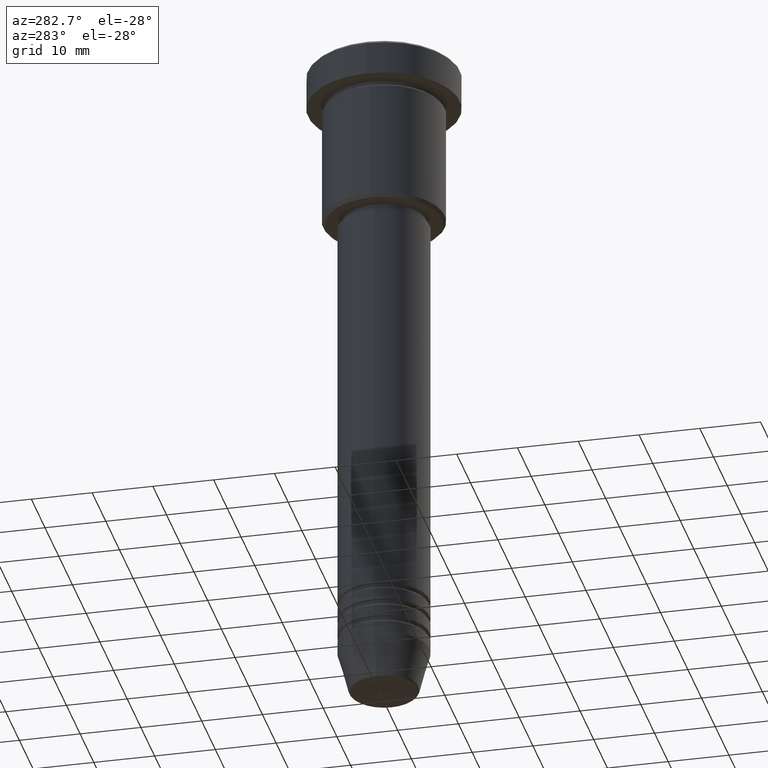
[diagram: clean part render]
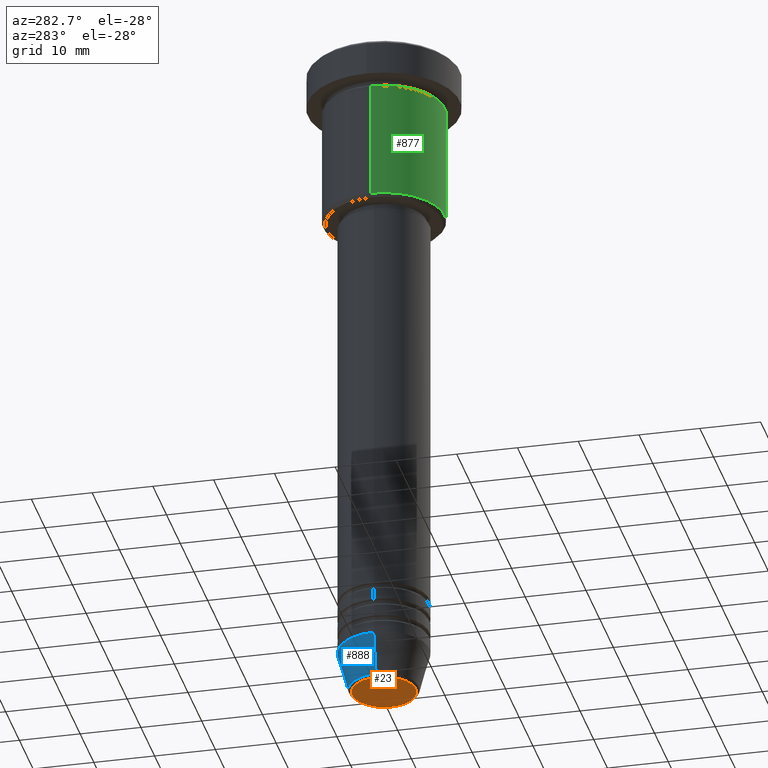
[diagram: same view with three faces highlighted in distinct colors, each labeled with its STEP entity id]
A machine part, auxiliary view with three faces highlighted in distinct colors.
Their STEP definitions:

[orange] entity #23 — the highlighted planar face has unit normal (0, -0, 1).
#8 = DIRECTION ( 'NONE',  ( 1.000000000000000000, 0.000000000000000000, 0.000000000000000000 ) ) ;
#23 = ADVANCED_FACE ( 'NONE', ( #142 ), #872, .F. ) ;
#91 = DIRECTION ( 'NONE',  ( 0.000000000000000000, 0.000000000000000000, -1.000000000000000000 ) ) ;
#100 = CARTESIAN_POINT ( 'NONE',  ( 0.000000000000000000, 0.000000000000000000, -112.0000000000000000 ) ) ;
#129 = VERTEX_POINT ( 'NONE', #627 ) ;
#142 = FACE_OUTER_BOUND ( 'NONE', #610, .T. ) ;
#191 = DIRECTION ( 'NONE',  ( 1.000000000000000000, 0.000000000000000000, 0.000000000000000000 ) ) ;
#242 = DIRECTION ( 'NONE',  ( 0.000000000000000000, -0.000000000000000000, 1.000000000000000000 ) ) ;
#246 = ORIENTED_EDGE ( 'NONE', *, *, #1138, .T. ) ;
#250 = AXIS2_PLACEMENT_3D ( 'NONE', #968, #242, #507 ) ;
#308 = AXIS2_PLACEMENT_3D ( 'NONE', #100, #830, #191 ) ;
#342 = VERTEX_POINT ( 'NONE', #955 ) ;
#443 = AXIS2_PLACEMENT_3D ( 'NONE', #916, #91, #8 ) ;
#483 = CIRCLE ( 'NONE', #443, 5.240692158992658278 ) ;
#507 = DIRECTION ( 'NONE',  ( 1.000000000000000000, 0.000000000000000000, 0.000000000000000000 ) ) ;
#610 = EDGE_LOOP ( 'NONE', ( #246, #847 ) ) ;
#627 = CARTESIAN_POINT ( 'NONE',  ( 5.240692158992658278, 0.000000000000000000, -112.0000000000000000 ) ) ;
#830 = DIRECTION ( 'NONE',  ( 0.000000000000000000, 0.000000000000000000, -1.000000000000000000 ) ) ;
#847 = ORIENTED_EDGE ( 'NONE', *, *, #1132, .T. ) ;
#872 = PLANE ( 'NONE',  #250 ) ;
#916 = CARTESIAN_POINT ( 'NONE',  ( 0.000000000000000000, 0.000000000000000000, -112.0000000000000000 ) ) ;
#955 = CARTESIAN_POINT ( 'NONE',  ( -5.240692158992658278, 6.713726370671658459E-16, -112.0000000000000000 ) ) ;
#968 = CARTESIAN_POINT ( 'NONE',  ( 0.000000000000000000, 0.000000000000000000, -112.0000000000000000 ) ) ;
#1132 = EDGE_CURVE ( 'NONE', #342, #129, #483, .T. ) ;
#1138 = EDGE_CURVE ( 'NONE', #129, #342, #1180, .T. ) ;
#1180 = CIRCLE ( 'NONE', #308, 5.240692158992658278 ) ;

[blue] entity #888 — the highlighted conical surface has half-angle 15 deg.
#73 = EDGE_CURVE ( 'NONE', #753, #336, #268, .T. ) ;
#90 = LINE ( 'NONE', #1087, #306 ) ;
#124 = CARTESIAN_POINT ( 'NONE',  ( 5.723655072137193933, 0.000000000000000000, -111.6294095225512706 ) ) ;
#130 = EDGE_CURVE ( 'NONE', #945, #336, #819, .T. ) ;
#182 = DIRECTION ( 'NONE',  ( 0.2588190451025213501, 0.000000000000000000, 0.9659258262890680902 ) ) ;
#256 = CONICAL_SURFACE ( 'NONE', #829, 7.500000000000000000, 0.2617993877991500740 ) ;
#268 = CIRCLE ( 'NONE', #1151, 7.500000000000000000 ) ;
#306 = VECTOR ( 'NONE', #182, 1000.000000000000000 ) ;
#336 = VERTEX_POINT ( 'NONE', #964 ) ;
#359 = ORIENTED_EDGE ( 'NONE', *, *, #777, .T. ) ;
#410 = FACE_OUTER_BOUND ( 'NONE', #1046, .T. ) ;
#414 = ORIENTED_EDGE ( 'NONE', *, *, #73, .F. ) ;
#477 = CARTESIAN_POINT ( 'NONE',  ( 0.000000000000000000, 0.000000000000000000, -111.6294095225512706 ) ) ;
#490 = ORIENTED_EDGE ( 'NONE', *, *, #914, .F. ) ;
#491 = CARTESIAN_POINT ( 'NONE',  ( 0.000000000000000000, 0.000000000000000000, -105.0000000000000142 ) ) ;
#495 = VERTEX_POINT ( 'NONE', #124 ) ;
#576 = CARTESIAN_POINT ( 'NONE',  ( -5.723655072137193933, 8.097153428560737887E-16, -111.6294095225512706 ) ) ;
#638 = DIRECTION ( 'NONE',  ( -0.000000000000000000, -0.000000000000000000, 1.000000000000000000 ) ) ;
#687 = CIRCLE ( 'NONE', #906, 5.723655072137193933 ) ;
#746 = VECTOR ( 'NONE', #1010, 1000.000000000000000 ) ;
#753 = VERTEX_POINT ( 'NONE', #934 ) ;
#777 = EDGE_CURVE ( 'NONE', #495, #945, #687, .T. ) ;
#819 = LINE ( 'NONE', #1088, #746 ) ;
#829 = AXIS2_PLACEMENT_3D ( 'NONE', #491, #956, #1067 ) ;
#849 = DIRECTION ( 'NONE',  ( -0.000000000000000000, -0.000000000000000000, 1.000000000000000000 ) ) ;
#883 = ORIENTED_EDGE ( 'NONE', *, *, #130, .T. ) ;
#888 = ADVANCED_FACE ( 'NONE', ( #410 ), #256, .T. ) ;
#906 = AXIS2_PLACEMENT_3D ( 'NONE', #477, #849, #952 ) ;
#914 = EDGE_CURVE ( 'NONE', #495, #753, #90, .T. ) ;
#917 = DIRECTION ( 'NONE',  ( 1.000000000000000000, 0.000000000000000000, 0.000000000000000000 ) ) ;
#934 = CARTESIAN_POINT ( 'NONE',  ( 7.500000000000000000, 0.000000000000000000, -105.0000000000000142 ) ) ;
#945 = VERTEX_POINT ( 'NONE', #576 ) ;
#952 = DIRECTION ( 'NONE',  ( 1.000000000000000000, 0.000000000000000000, 0.000000000000000000 ) ) ;
#956 = DIRECTION ( 'NONE',  ( -0.000000000000000000, -0.000000000000000000, 1.000000000000000000 ) ) ;
#964 = CARTESIAN_POINT ( 'NONE',  ( -7.500000000000000000, 9.184850993605147944E-16, -105.0000000000000142 ) ) ;
#1001 = CARTESIAN_POINT ( 'NONE',  ( 0.000000000000000000, 0.000000000000000000, -105.0000000000000142 ) ) ;
#1010 = DIRECTION ( 'NONE',  ( -0.2588190451025213501, 3.169619151431772337E-17, 0.9659258262890680902 ) ) ;
#1046 = EDGE_LOOP ( 'NONE', ( #359, #883, #414, #490 ) ) ;
#1067 = DIRECTION ( 'NONE',  ( 1.000000000000000000, 0.000000000000000000, 0.000000000000000000 ) ) ;
#1087 = CARTESIAN_POINT ( 'NONE',  ( 7.500000000000000000, 0.000000000000000000, -105.0000000000000142 ) ) ;
#1088 = CARTESIAN_POINT ( 'NONE',  ( -7.500000000000000000, 9.184850993605147944E-16, -105.0000000000000142 ) ) ;
#1151 = AXIS2_PLACEMENT_3D ( 'NONE', #1001, #638, #917 ) ;

[green] entity #877 — the highlighted cylindrical surface (partial cylindrical patch) has radius 10 mm, axis along (-0, -0, 1).
#18 = ORIENTED_EDGE ( 'NONE', *, *, #126, .F. ) ;
#68 = AXIS2_PLACEMENT_3D ( 'NONE', #543, #430, #451 ) ;
#84 = LINE ( 'NONE', #1181, #618 ) ;
#119 = AXIS2_PLACEMENT_3D ( 'NONE', #802, #421, #224 ) ;
#126 = EDGE_CURVE ( 'NONE', #1061, #820, #165, .T. ) ;
#165 = LINE ( 'NONE', #897, #1024 ) ;
#169 = CARTESIAN_POINT ( 'NONE',  ( -10.00000000000000000, 1.224646799147353256E-15, -6.999999999999996447 ) ) ;
#183 = CYLINDRICAL_SURFACE ( 'NONE', #68, 10.00000000000000000 ) ;
#202 = EDGE_CURVE ( 'NONE', #820, #422, #884, .T. ) ;
#224 = DIRECTION ( 'NONE',  ( -1.000000000000000000, 0.000000000000000000, 0.000000000000000000 ) ) ;
#297 = EDGE_CURVE ( 'NONE', #1061, #455, #478, .T. ) ;
#352 = DIRECTION ( 'NONE',  ( -0.000000000000000000, -0.000000000000000000, 1.000000000000000000 ) ) ;
#421 = DIRECTION ( 'NONE',  ( -0.000000000000000000, -0.000000000000000000, 1.000000000000000000 ) ) ;
#422 = VERTEX_POINT ( 'NONE', #994 ) ;
#430 = DIRECTION ( 'NONE',  ( -0.000000000000000000, -0.000000000000000000, 1.000000000000000000 ) ) ;
#447 = DIRECTION ( 'NONE',  ( -0.000000000000000000, -0.000000000000000000, 1.000000000000000000 ) ) ;
#451 = DIRECTION ( 'NONE',  ( 1.000000000000000000, 0.000000000000000000, 0.000000000000000000 ) ) ;
#455 = VERTEX_POINT ( 'NONE', #953 ) ;
#478 = CIRCLE ( 'NONE', #119, 10.00000000000000000 ) ;
#501 = ORIENTED_EDGE ( 'NONE', *, *, #202, .F. ) ;
#510 = EDGE_LOOP ( 'NONE', ( #18, #886, #1140, #501 ) ) ;
#543 = CARTESIAN_POINT ( 'NONE',  ( 0.000000000000000000, 0.000000000000000000, 0.000000000000000000 ) ) ;
#557 = DIRECTION ( 'NONE',  ( -0.000000000000000000, -0.000000000000000000, 1.000000000000000000 ) ) ;
#618 = VECTOR ( 'NONE', #352, 1000.000000000000000 ) ;
#645 = CARTESIAN_POINT ( 'NONE',  ( 0.000000000000000000, 0.000000000000000000, -6.999999999999996447 ) ) ;
#802 = CARTESIAN_POINT ( 'NONE',  ( 0.000000000000000000, 0.000000000000000000, -26.49999999999998579 ) ) ;
#814 = CARTESIAN_POINT ( 'NONE',  ( -10.00000000000000000, 1.224646799147353256E-15, -26.49999999999998579 ) ) ;
#820 = VERTEX_POINT ( 'NONE', #169 ) ;
#835 = EDGE_CURVE ( 'NONE', #455, #422, #84, .T. ) ;
#877 = ADVANCED_FACE ( 'NONE', ( #1007 ), #183, .T. ) ;
#884 = CIRCLE ( 'NONE', #1174, 10.00000000000000000 ) ;
#886 = ORIENTED_EDGE ( 'NONE', *, *, #297, .T. ) ;
#897 = CARTESIAN_POINT ( 'NONE',  ( -10.00000000000000000, 1.224646799147353256E-15, 0.000000000000000000 ) ) ;
#925 = DIRECTION ( 'NONE',  ( 1.000000000000000000, 0.000000000000000000, 0.000000000000000000 ) ) ;
#953 = CARTESIAN_POINT ( 'NONE',  ( 10.00000000000000000, 0.000000000000000000, -26.49999999999998579 ) ) ;
#994 = CARTESIAN_POINT ( 'NONE',  ( 10.00000000000000000, 0.000000000000000000, -6.999999999999996447 ) ) ;
#1007 = FACE_OUTER_BOUND ( 'NONE', #510, .T. ) ;
#1024 = VECTOR ( 'NONE', #447, 1000.000000000000000 ) ;
#1061 = VERTEX_POINT ( 'NONE', #814 ) ;
#1140 = ORIENTED_EDGE ( 'NONE', *, *, #835, .T. ) ;
#1174 = AXIS2_PLACEMENT_3D ( 'NONE', #645, #557, #925 ) ;
#1181 = CARTESIAN_POINT ( 'NONE',  ( 10.00000000000000000, 0.000000000000000000, 0.000000000000000000 ) ) ;